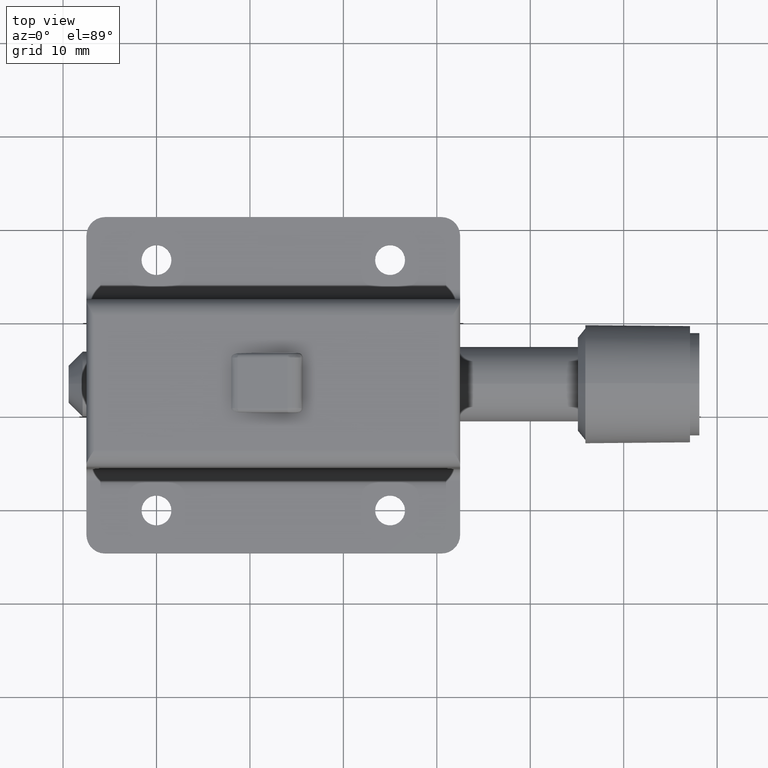
[diagram: clean part render]
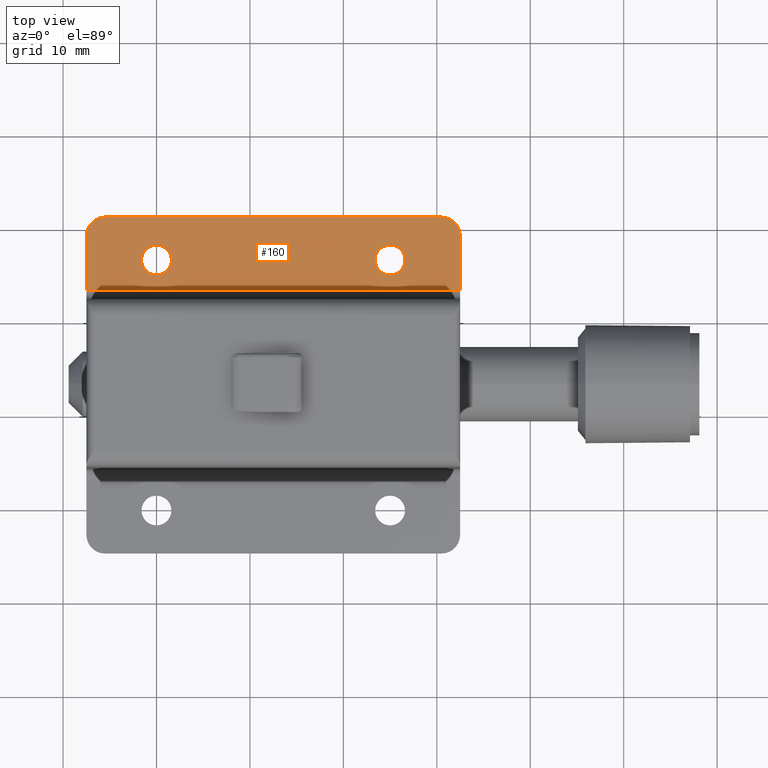
[diagram: same view with one face highlighted and labeled with its STEP entity id]
A machine part, top view. The second image highlights one B-rep face of the part: STEP entity #160.
In plain terms, the highlighted planar face has unit normal (0, 0, -1).
Its self-contained STEP definition (entity closure, byte-faithful):
#160=ADVANCED_FACE('',(#696,#697,#698),#695,.F.);
#695=PLANE('',#1434);
#696=FACE_OUTER_BOUND('',#1435,.T.);
#697=FACE_BOUND('',#1436,.T.);
#698=FACE_BOUND('',#1437,.T.);
#1431=CARTESIAN_POINT('',(3.65000000000E+01,2.28200000000E+01,0.00000000000E+00));
#1432=DIRECTION('',(0.00000000000E+00,0.00000000000E+00,-1.00000000000E+00));
#1433=DIRECTION('',(-1.00000000000E+00,0.00000000000E+00,0.00000000000E+00));
#1434=AXIS2_PLACEMENT_3D('',#1431,#1432,#1433);
#1435=EDGE_LOOP('',(#1954,#1955,#1956,#1957,#1958,#1959));
#1436=EDGE_LOOP('',(#1960,#1961));
#1437=EDGE_LOOP('',(#1962,#1963));
#1954=ORIENTED_EDGE('',*,*,#2296,.F.);
#1955=ORIENTED_EDGE('',*,*,#2207,.T.);
#1956=ORIENTED_EDGE('',*,*,#2200,.F.);
#1957=ORIENTED_EDGE('',*,*,#2295,.T.);
#1958=ORIENTED_EDGE('',*,*,#2191,.T.);
#1959=ORIENTED_EDGE('',*,*,#2205,.T.);
#1960=ORIENTED_EDGE('',*,*,#2297,.F.);
#1961=ORIENTED_EDGE('',*,*,#2298,.F.);
#1962=ORIENTED_EDGE('',*,*,#2299,.F.);
#1963=ORIENTED_EDGE('',*,*,#2300,.F.);
#2191=EDGE_CURVE('',#2703,#2696,#2704,.T.);
#2200=EDGE_CURVE('',#2758,#2765,#2766,.T.);
#2205=EDGE_CURVE('',#2696,#2798,#2799,.T.);
#2207=EDGE_CURVE('',#2811,#2765,#2812,.T.);
#2295=EDGE_CURVE('',#2758,#2703,#3393,.T.);
#2296=EDGE_CURVE('',#2811,#2798,#3399,.T.);
#2297=EDGE_CURVE('',#3405,#3406,#3407,.T.);
#2298=EDGE_CURVE('',#3406,#3405,#3413,.T.);
#2299=EDGE_CURVE('',#3419,#3420,#3421,.T.);
#2300=EDGE_CURVE('',#3420,#3419,#3427,.T.);
#2696=VERTEX_POINT('',#4092);
#2703=VERTEX_POINT('',#4096);
#2704=LINE('',#4097,#4098);
#2758=VERTEX_POINT('',#4131);
#2765=VERTEX_POINT('',#4136);
#2766=LINE('',#4137,#4138);
#2798=VERTEX_POINT('',#4156);
#2799=CIRCLE('',#4160,2.00000000000E+00);
#2811=VERTEX_POINT('',#4164);
#2812=CIRCLE('',#4168,2.00000000000E+00);
#3393=LINE('',#4528,#4529);
#3399=LINE('',#4531,#4532);
#3405=VERTEX_POINT('',#4534);
#3406=VERTEX_POINT('',#4535);
#3407=CIRCLE('',#4539,1.60000000000E+00);
#3413=CIRCLE('',#4543,1.60000000000E+00);
#3419=VERTEX_POINT('',#4544);
#3420=VERTEX_POINT('',#4545);
#3421=CIRCLE('',#4549,1.60000000000E+00);
#3427=CIRCLE('',#4553,1.60000000000E+00);
#4092=CARTESIAN_POINT('',(3.25000000000E+01,2.94000000000E+01,0.00000000000E+00));
#4096=CARTESIAN_POINT('',(3.25000000000E+01,2.36000000000E+01,-1.06581410364E-14));
#4097=CARTESIAN_POINT('',(3.25000000000E+01,2.36000000000E+01,0.00000000000E+00));
#4098=VECTOR('',#4099,5.80000000000E+00);
#4099=DIRECTION('',(0.00000000000E+00,1.00000000000E+00,0.00000000000E+00));
#4131=CARTESIAN_POINT('',(-7.50000000000E+00,2.36000000000E+01,-1.06581410364E-14));
#4136=CARTESIAN_POINT('',(-7.50000000000E+00,2.94000000000E+01,0.00000000000E+00));
#4137=CARTESIAN_POINT('',(-7.50000000000E+00,2.36000000000E+01,0.00000000000E+00));
#4138=VECTOR('',#4139,5.80000000000E+00);
#4139=DIRECTION('',(0.00000000000E+00,1.00000000000E+00,0.00000000000E+00));
#4156=CARTESIAN_POINT('',(3.05000000000E+01,3.14000000000E+01,0.00000000000E+00));
#4157=CARTESIAN_POINT('',(3.05000000000E+01,2.94000000000E+01,0.00000000000E+00));
#4158=DIRECTION('',(0.00000000000E+00,-0.00000000000E+00,1.00000000000E+00));
#4159=DIRECTION('',(1.00000000000E+00,-0.00000000000E+00,-0.00000000000E+00));
#4160=AXIS2_PLACEMENT_3D('',#4157,#4158,#4159);
#4164=CARTESIAN_POINT('',(-5.50000000000E+00,3.14000000000E+01,0.00000000000E+00));
#4165=CARTESIAN_POINT('',(-5.50000000000E+00,2.94000000000E+01,0.00000000000E+00));
#4166=DIRECTION('',(0.00000000000E+00,-0.00000000000E+00,1.00000000000E+00));
#4167=DIRECTION('',(1.00000000000E+00,-0.00000000000E+00,-0.00000000000E+00));
#4168=AXIS2_PLACEMENT_3D('',#4165,#4166,#4167);
#4528=CARTESIAN_POINT('',(-7.50000000000E+00,2.36000000000E+01,-1.06581410364E-14));
#4529=VECTOR('',#4530,4.00000000000E+01);
#4530=DIRECTION('',(1.00000000000E+00,0.00000000000E+00,0.00000000000E+00));
#4531=CARTESIAN_POINT('',(-5.50000000000E+00,3.14000000000E+01,0.00000000000E+00));
#4532=VECTOR('',#4533,3.60000000000E+01);
#4533=DIRECTION('',(1.00000000000E+00,0.00000000000E+00,0.00000000000E+00));
#4534=CARTESIAN_POINT('',(2.66000000000E+01,2.68000000000E+01,0.00000000000E+00));
#4535=CARTESIAN_POINT('',(2.34000000000E+01,2.68000000000E+01,0.00000000000E+00));
#4536=CARTESIAN_POINT('',(2.50000000000E+01,2.68000000000E+01,0.00000000000E+00));
#4537=DIRECTION('',(0.00000000000E+00,0.00000000000E+00,1.00000000000E+00));
#4538=DIRECTION('',(-1.00000000000E+00,-1.22460635382E-16,0.00000000000E+00));
#4539=AXIS2_PLACEMENT_3D('',#4536,#4537,#4538);
#4540=CARTESIAN_POINT('',(2.50000000000E+01,2.68000000000E+01,0.00000000000E+00));
#4541=DIRECTION('',(0.00000000000E+00,0.00000000000E+00,1.00000000000E+00));
#4542=DIRECTION('',(-1.00000000000E+00,-1.22460635382E-16,0.00000000000E+00));
#4543=AXIS2_PLACEMENT_3D('',#4540,#4541,#4542);
#4544=CARTESIAN_POINT('',(1.60000000000E+00,2.68000000000E+01,0.00000000000E+00));
#4545=CARTESIAN_POINT('',(-1.60000000000E+00,2.68000000000E+01,0.00000000000E+00));
#4546=CARTESIAN_POINT('',(0.00000000000E+00,2.68000000000E+01,0.00000000000E+00));
#4547=DIRECTION('',(0.00000000000E+00,0.00000000000E+00,1.00000000000E+00));
#4548=DIRECTION('',(-1.00000000000E+00,-1.22460635382E-16,0.00000000000E+00));
#4549=AXIS2_PLACEMENT_3D('',#4546,#4547,#4548);
#4550=CARTESIAN_POINT('',(0.00000000000E+00,2.68000000000E+01,0.00000000000E+00));
#4551=DIRECTION('',(0.00000000000E+00,0.00000000000E+00,1.00000000000E+00));
#4552=DIRECTION('',(-1.00000000000E+00,-1.22460635382E-16,0.00000000000E+00));
#4553=AXIS2_PLACEMENT_3D('',#4550,#4551,#4552);